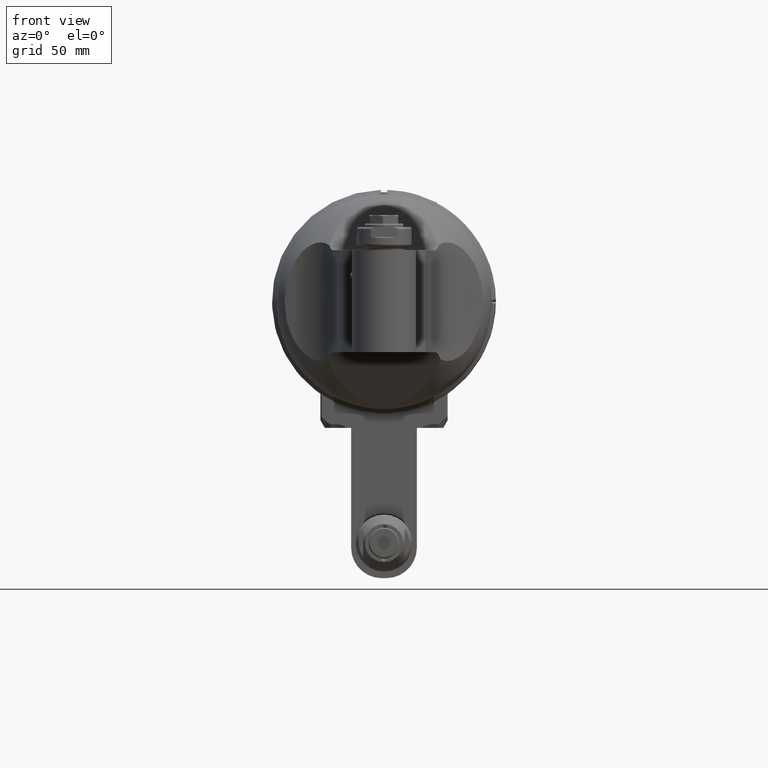
[diagram: clean part render]
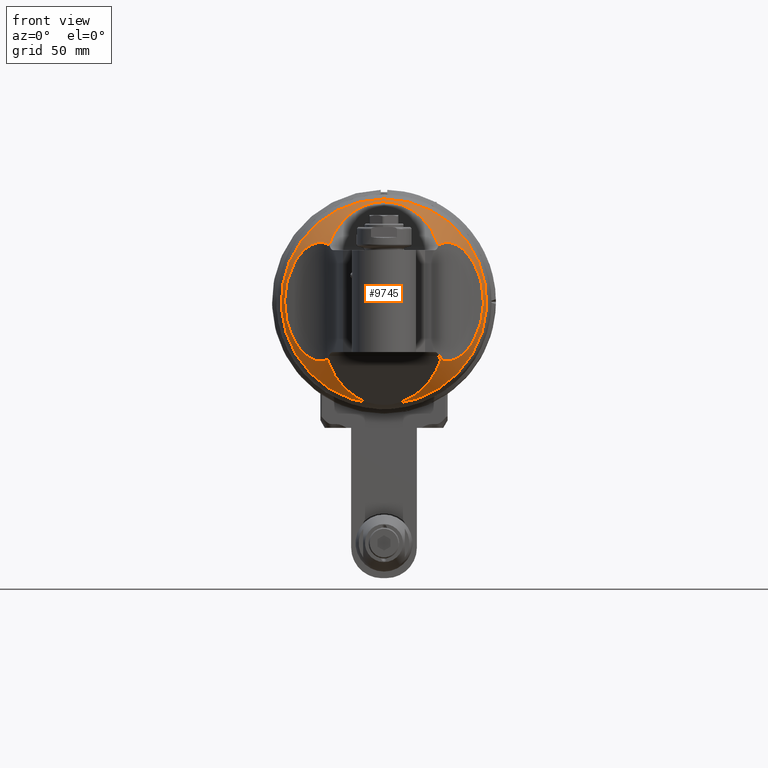
[diagram: same view with one face highlighted and labeled with its STEP entity id]
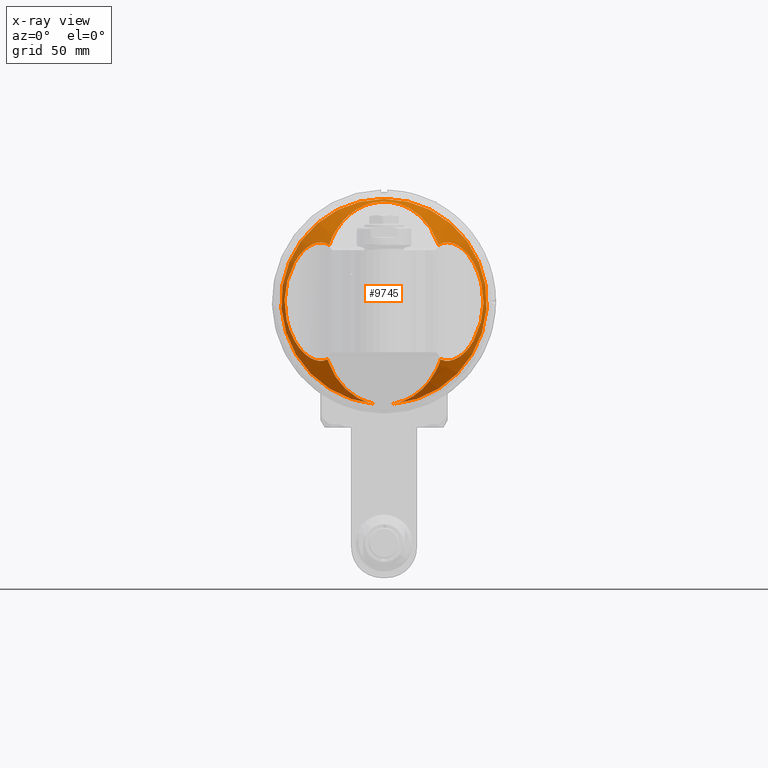
[diagram: x-ray of the same camera — body ghosted, the highlighted face saturated]
A machine part, front view. The second image highlights one B-rep face of the part: STEP entity #9745.
The next image is the same camera in x-ray: the body ghosted, the highlighted face saturated — about 0% of this face is hidden behind the body in this view.
In plain terms, the highlighted conical surface has half-angle 35 deg.
Its self-contained STEP definition (entity closure, byte-faithful):
#36=ELLIPSE('',#10755,38.5129525458926,27.495912521784);
#39=ELLIPSE('',#10758,38.5129525458926,27.495912521784);
#40=ELLIPSE('',#10760,39.5168570021427,37.4925114331019);
#41=ELLIPSE('',#10761,37.3310363154756,26.6520960099003);
#42=ELLIPSE('',#10762,39.5168570021427,37.4925114331019);
#181=B_SPLINE_CURVE_WITH_KNOTS('',3,(#19862,#19863,#19864,#19865,#19866,
#19867,#19868,#19869,#19870,#19871,#19872,#19873,#19874,#19875,#19876,#19877),
 .UNSPECIFIED.,.F.,.F.,(4,2,2,2,2,2,2,4),(-2.5006150648406,-2.0954959693587,
-1.64257144081119,-1.40016291077484,-1.15775438073849,-0.868315785553868,
-0.578877190369244,-0.33947662965842),.UNSPECIFIED.);
#182=B_SPLINE_CURVE_WITH_KNOTS('',3,(#19881,#19882,#19883,#19884,#19885,
#19886,#19887,#19888,#19889,#19890,#19891,#19892,#19893,#19894,#19895,#19896),
 .UNSPECIFIED.,.F.,.F.,(4,2,2,2,2,2,2,4),(-8.30361627977659,-7.89532322632122,
-7.6058846311366,-7.31644603595197,-7.07403750591562,-6.83162897587928,
-6.37870444733176,-5.97358535187808),.UNSPECIFIED.);
#183=B_SPLINE_CURVE_WITH_KNOTS('',3,(#19900,#19901,#19902,#19903,#19904,
#19905,#19906,#19907,#19908,#19909,#19910,#19911,#19912,#19913,#19914,#19915),
 .UNSPECIFIED.,.F.,.F.,(4,2,2,2,2,2,2,4),(-2.50061506481325,-2.0954959693587,
-1.64257144081119,-1.40016291077484,-1.15775438073849,-0.86831578555387,
-0.578877190369246,-0.170584136913873),.UNSPECIFIED.);
#184=B_SPLINE_CURVE_WITH_KNOTS('',3,(#19918,#19919,#19920,#19921,#19922,
#19923,#19924,#19925,#19926,#19927,#19928,#19929,#19930,#19931,#19932,#19933),
 .UNSPECIFIED.,.F.,.F.,(4,2,2,2,2,2,2,4),(-8.13472378703307,-7.89532322632122,
-7.6058846311366,-7.31644603595198,-7.07403750591563,-6.83162897587928,
-6.37870444733176,-5.97358535204168),.UNSPECIFIED.);
#1964=CONICAL_SURFACE('',#10759,41.34548221376,0.610865238198015);
#2372=FACE_OUTER_BOUND('',#2999,.T.);
#2999=EDGE_LOOP('',(#8183,#8184,#8185,#8186,#8187,#8188,#8189,#8190,#8191,
#8192,#8193));
#3596=CIRCLE('',#10752,46.82982453147);
#3597=CIRCLE('',#10753,46.82982453147);
#4434=VERTEX_POINT('',#19834);
#4435=VERTEX_POINT('',#19836);
#4436=VERTEX_POINT('',#19838);
#4437=VERTEX_POINT('',#19851);
#4440=VERTEX_POINT('',#19857);
#4441=VERTEX_POINT('',#19861);
#4442=VERTEX_POINT('',#19878);
#4443=VERTEX_POINT('',#19880);
#4444=VERTEX_POINT('',#19897);
#4445=VERTEX_POINT('',#19899);
#4446=VERTEX_POINT('',#19916);
#5732=EDGE_CURVE('',#4434,#4435,#3596,.T.);
#5734=EDGE_CURVE('',#4436,#4434,#3597,.T.);
#5735=EDGE_CURVE('',#4435,#4437,#36,.T.);
#5739=EDGE_CURVE('',#4440,#4436,#39,.T.);
#5740=EDGE_CURVE('',#4441,#4440,#181,.T.);
#5741=EDGE_CURVE('',#4442,#4441,#40,.T.);
#5742=EDGE_CURVE('',#4443,#4442,#182,.T.);
#5743=EDGE_CURVE('',#4444,#4443,#41,.T.);
#5744=EDGE_CURVE('',#4445,#4444,#183,.T.);
#5745=EDGE_CURVE('',#4446,#4445,#42,.T.);
#5746=EDGE_CURVE('',#4437,#4446,#184,.T.);
#8183=ORIENTED_EDGE('',*,*,#5735,.F.);
#8184=ORIENTED_EDGE('',*,*,#5732,.F.);
#8185=ORIENTED_EDGE('',*,*,#5734,.F.);
#8186=ORIENTED_EDGE('',*,*,#5739,.F.);
#8187=ORIENTED_EDGE('',*,*,#5740,.F.);
#8188=ORIENTED_EDGE('',*,*,#5741,.F.);
#8189=ORIENTED_EDGE('',*,*,#5742,.F.);
#8190=ORIENTED_EDGE('',*,*,#5743,.F.);
#8191=ORIENTED_EDGE('',*,*,#5744,.F.);
#8192=ORIENTED_EDGE('',*,*,#5745,.F.);
#8193=ORIENTED_EDGE('',*,*,#5746,.F.);
#9745=ADVANCED_FACE('',(#2372),#1964,.T.);
#10752=AXIS2_PLACEMENT_3D('',#19837,#13157,#13158);
#10753=AXIS2_PLACEMENT_3D('',#19849,#13159,#13160);
#10755=AXIS2_PLACEMENT_3D('',#19852,#13163,#13164);
#10758=AXIS2_PLACEMENT_3D('',#19859,#13170,#13171);
#10759=AXIS2_PLACEMENT_3D('',#19860,#13172,#13173);
#10760=AXIS2_PLACEMENT_3D('',#19879,#13174,#13175);
#10761=AXIS2_PLACEMENT_3D('',#19898,#13176,#13177);
#10762=AXIS2_PLACEMENT_3D('',#19917,#13178,#13179);
#13157=DIRECTION('center_axis',(0.,1.,0.));
#13158=DIRECTION('ref_axis',(0.,0.,1.));
#13159=DIRECTION('center_axis',(0.,1.,0.));
#13160=DIRECTION('ref_axis',(0.,0.,1.));
#13163=DIRECTION('center_axis',(0.,-0.819152044289016,-0.573576436351011));
#13164=DIRECTION('ref_axis',(2.30618106633544E-16,0.573576436351011,-0.819152044289016));
#13170=DIRECTION('center_axis',(0.,-0.819152044289016,-0.573576436351011));
#13171=DIRECTION('ref_axis',(2.30618106633544E-16,0.573576436351011,-0.819152044289016));
#13172=DIRECTION('center_axis',(0.,1.,0.));
#13173=DIRECTION('ref_axis',(7.72837689819024E-13,0.,1.));
#13174=DIRECTION('center_axis',(-0.258819045102493,-0.965925826289076,0.));
#13175=DIRECTION('ref_axis',(-0.965925826289076,0.258819045102493,-2.84553889324E-15));
#13176=DIRECTION('center_axis',(0.,-0.819152044289016,0.573576436351011));
#13177=DIRECTION('ref_axis',(3.6877533720233E-15,-0.573576436351011,-0.819152044289016));
#13178=DIRECTION('center_axis',(0.258819045102493,-0.965925826289076,0.));
#13179=DIRECTION('ref_axis',(-0.965925826289076,-0.258819045102493,1.10789860746816E-14));
#19834=CARTESIAN_POINT('',(5.73499947170969E-15,96.90066823034,46.82982453147));
#19836=CARTESIAN_POINT('',(4.249092444111,96.90066823034,-46.63665595912));
#19837=CARTESIAN_POINT('Origin',(0.,96.90066823034,0.));
#19838=CARTESIAN_POINT('',(-4.249092444183,96.90066823034,-46.63665595911));
#19849=CARTESIAN_POINT('Origin',(0.,96.90066823034,0.));
#19851=CARTESIAN_POINT('',(25.81853261668,82.67336442075,-26.31796038215));
#19852=CARTESIAN_POINT('Origin',(8.88178419700125E-15,75.0759093010523,
-15.4676699966277));
#19857=CARTESIAN_POINT('',(-25.81853261668,82.67336442076,-26.31796038216));
#19859=CARTESIAN_POINT('Origin',(8.88178419700125E-15,75.0759093010523,
-15.4676699966277));
#19860=CARTESIAN_POINT('Origin',(0.,89.06821568101,0.));
#19861=CARTESIAN_POINT('',(-40.85173814931,93.56092673687,-17.62419830494));
#19862=CARTESIAN_POINT('Ctrl Pts',(-40.8517381491494,93.5609267368009,-17.6241983048429));
#19863=CARTESIAN_POINT('Ctrl Pts',(-40.2013580862936,93.3866579242108,-18.8236930449535));
#19864=CARTESIAN_POINT('Ctrl Pts',(-39.4169390432732,93.1496062398592,-20.0554829054187));
#19865=CARTESIAN_POINT('Ctrl Pts',(-37.555851833594,92.4592198159597,-22.4381015077512));
#19866=CARTESIAN_POINT('Ctrl Pts',(-36.4529584490278,91.9776307020735,-23.55872649985));
#19867=CARTESIAN_POINT('Ctrl Pts',(-34.7760462318909,91.0846772089114,-24.8863895056009));
#19868=CARTESIAN_POINT('Ctrl Pts',(-34.1154834435408,90.7025549598792,-25.338063835295));
#19869=CARTESIAN_POINT('Ctrl Pts',(-32.7755444591093,89.8345785170162,-26.0838870459407));
#19870=CARTESIAN_POINT('Ctrl Pts',(-32.0966140452087,89.3476905919845,-26.3776332969369));
#19871=CARTESIAN_POINT('Ctrl Pts',(-30.7486566115178,88.2847943089858,-26.8205399459283));
#19872=CARTESIAN_POINT('Ctrl Pts',(-30.0091715246463,87.6362152755115,-26.967673996295));
#19873=CARTESIAN_POINT('Ctrl Pts',(-28.5858851021228,86.2284808620151,-27.0572048700771));
#19874=CARTESIAN_POINT('Ctrl Pts',(-27.9021545399793,85.4692816682609,-27.0000373387036));
#19875=CARTESIAN_POINT('Ctrl Pts',(-26.7493439343607,84.0269501838576,-26.7313768252457));
#19876=CARTESIAN_POINT('Ctrl Pts',(-26.2624624900088,83.3524504893694,-26.5485650772064));
#19877=CARTESIAN_POINT('Ctrl Pts',(-25.8185326166878,82.6733644207579,-26.3179603821512));
#19878=CARTESIAN_POINT('',(-40.85173814904,93.56092673678,17.62419830511));
#19879=CARTESIAN_POINT('Origin',(-7.16152327802339,84.533660869252,0.));
#19880=CARTESIAN_POINT('',(-24.94381098088,81.23576313169,25.76485296668));
#19881=CARTESIAN_POINT('Ctrl Pts',(-24.943810980882,81.2357631316898,25.764852966678));
#19882=CARTESIAN_POINT('Ctrl Pts',(-25.5951810231089,82.3887316737601,26.2579148198311));
#19883=CARTESIAN_POINT('Ctrl Pts',(-26.3811770641985,83.5663206010266,26.6455761743028));
#19884=CARTESIAN_POINT('Ctrl Pts',(-27.9021545399793,85.4692816682609,27.0000373387036));
#19885=CARTESIAN_POINT('Ctrl Pts',(-28.5858851021228,86.2284808620151,27.0572048700771));
#19886=CARTESIAN_POINT('Ctrl Pts',(-30.0091715246463,87.6362152755115,26.967673996295));
#19887=CARTESIAN_POINT('Ctrl Pts',(-30.7486566115178,88.2847943089858,26.8205399459283));
#19888=CARTESIAN_POINT('Ctrl Pts',(-32.0966140452087,89.3476905919845,26.3776332969369));
#19889=CARTESIAN_POINT('Ctrl Pts',(-32.7755444591093,89.8345785170162,26.0838870459407));
#19890=CARTESIAN_POINT('Ctrl Pts',(-34.1154834435409,90.7025549598792,25.3380638352951));
#19891=CARTESIAN_POINT('Ctrl Pts',(-34.7760462318909,91.0846772089114,24.8863895056009));
#19892=CARTESIAN_POINT('Ctrl Pts',(-36.4529584490278,91.9776307020735,23.55872649985));
#19893=CARTESIAN_POINT('Ctrl Pts',(-37.555851833594,92.4592198159597,22.4381015077512));
#19894=CARTESIAN_POINT('Ctrl Pts',(-39.416939043212,93.1496062398365,20.055482905497));
#19895=CARTESIAN_POINT('Ctrl Pts',(-40.2013580861849,93.3866579241779,18.8236930451253));
#19896=CARTESIAN_POINT('Ctrl Pts',(-40.8517381490135,93.5609267367645,17.6241983050934));
#19897=CARTESIAN_POINT('',(24.94381098088,81.23576313169,25.76485296668));
#19898=CARTESIAN_POINT('Origin',(-4.44089209850063E-15,73.6932205359472,
14.9929857928144));
#19899=CARTESIAN_POINT('',(40.85173814904,93.56092673678,17.6241983051));
#19900=CARTESIAN_POINT('Ctrl Pts',(40.8517381490177,93.5609267367656,17.6241983050858));
#19901=CARTESIAN_POINT('Ctrl Pts',(40.2013580861882,93.3866579241789,18.8236930451201));
#19902=CARTESIAN_POINT('Ctrl Pts',(39.4169390432138,93.1496062398372,20.0554829054946));
#19903=CARTESIAN_POINT('Ctrl Pts',(37.555851833594,92.4592198159597,22.4381015077512));
#19904=CARTESIAN_POINT('Ctrl Pts',(36.4529584490278,91.9776307020735,23.55872649985));
#19905=CARTESIAN_POINT('Ctrl Pts',(34.7760462318909,91.0846772089114,24.8863895056009));
#19906=CARTESIAN_POINT('Ctrl Pts',(34.1154834435409,90.7025549598792,25.3380638352951));
#19907=CARTESIAN_POINT('Ctrl Pts',(32.7755444591093,89.8345785170162,26.0838870459407));
#19908=CARTESIAN_POINT('Ctrl Pts',(32.0966140452087,89.3476905919845,26.3776332969369));
#19909=CARTESIAN_POINT('Ctrl Pts',(30.7486566115178,88.2847943089858,26.8205399459283));
#19910=CARTESIAN_POINT('Ctrl Pts',(30.0091715246463,87.6362152755115,26.967673996295));
#19911=CARTESIAN_POINT('Ctrl Pts',(28.5858851021228,86.2284808620151,27.0572048700771));
#19912=CARTESIAN_POINT('Ctrl Pts',(27.9021545399793,85.4692816682609,27.0000373387036));
#19913=CARTESIAN_POINT('Ctrl Pts',(26.3811770641985,83.5663206010266,26.6455761743028));
#19914=CARTESIAN_POINT('Ctrl Pts',(25.5951810231089,82.3887316737601,26.2579148198311));
#19915=CARTESIAN_POINT('Ctrl Pts',(24.943810980882,81.2357631316898,25.764852966678));
#19916=CARTESIAN_POINT('',(40.85173814823,93.56092673656,-17.62419830655));
#19917=CARTESIAN_POINT('Origin',(7.1615232780234,84.533660869252,8.88178419700125E-15));
#19918=CARTESIAN_POINT('Ctrl Pts',(25.8185326166821,82.6733644207492,-26.3179603821482));
#19919=CARTESIAN_POINT('Ctrl Pts',(26.2624624900047,83.3524504893636,-26.5485650772048));
#19920=CARTESIAN_POINT('Ctrl Pts',(26.7493439343585,84.0269501838548,-26.7313768252452));
#19921=CARTESIAN_POINT('Ctrl Pts',(27.9021545399793,85.4692816682609,-27.0000373387036));
#19922=CARTESIAN_POINT('Ctrl Pts',(28.5858851021228,86.2284808620151,-27.0572048700771));
#19923=CARTESIAN_POINT('Ctrl Pts',(30.0091715246463,87.6362152755115,-26.967673996295));
#19924=CARTESIAN_POINT('Ctrl Pts',(30.7486566115178,88.2847943089858,-26.8205399459283));
#19925=CARTESIAN_POINT('Ctrl Pts',(32.0966140452087,89.3476905919845,-26.3776332969369));
#19926=CARTESIAN_POINT('Ctrl Pts',(32.7755444591092,89.8345785170162,-26.0838870459408));
#19927=CARTESIAN_POINT('Ctrl Pts',(34.1154834435408,90.7025549598792,-25.3380638352951));
#19928=CARTESIAN_POINT('Ctrl Pts',(34.7760462318909,91.0846772089114,-24.8863895056009));
#19929=CARTESIAN_POINT('Ctrl Pts',(36.4529584490278,91.9776307020735,-23.55872649985));
#19930=CARTESIAN_POINT('Ctrl Pts',(37.555851833594,92.4592198159597,-22.4381015077512));
#19931=CARTESIAN_POINT('Ctrl Pts',(39.4169390428571,93.1496062397049,-20.0554829059513));
#19932=CARTESIAN_POINT('Ctrl Pts',(40.2013580855546,93.3866579239872,-18.8236930461222));
#19933=CARTESIAN_POINT('Ctrl Pts',(40.8517381482256,93.5609267365534,-17.6241983065466));